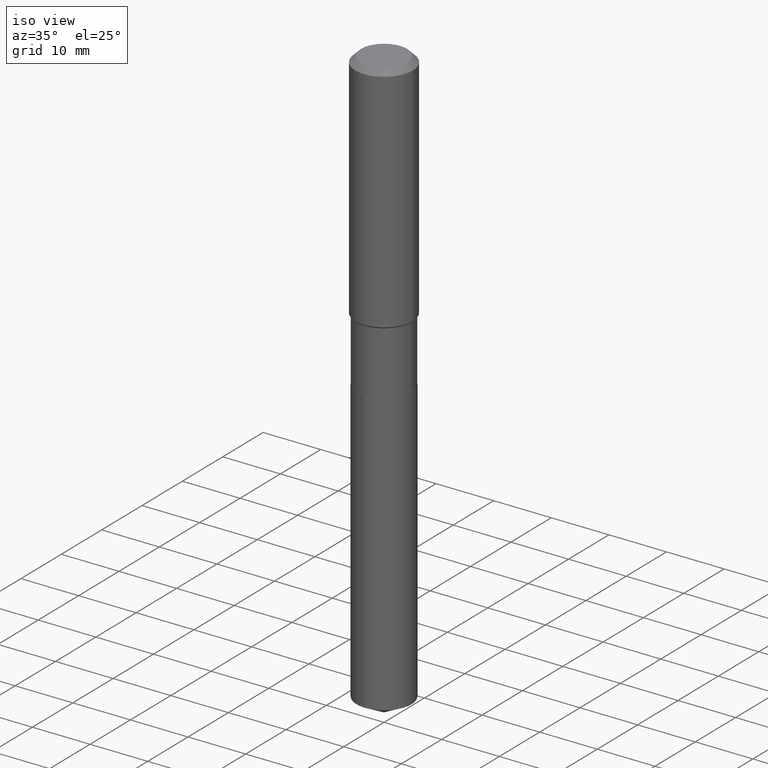
[diagram: clean part render]
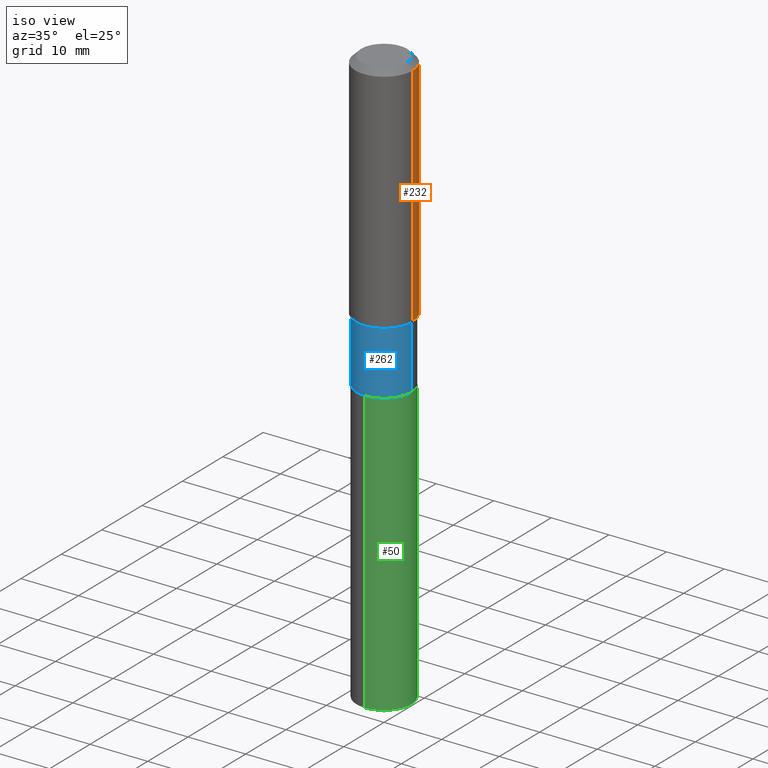
[diagram: same view with three faces highlighted in distinct colors, each labeled with its STEP entity id]
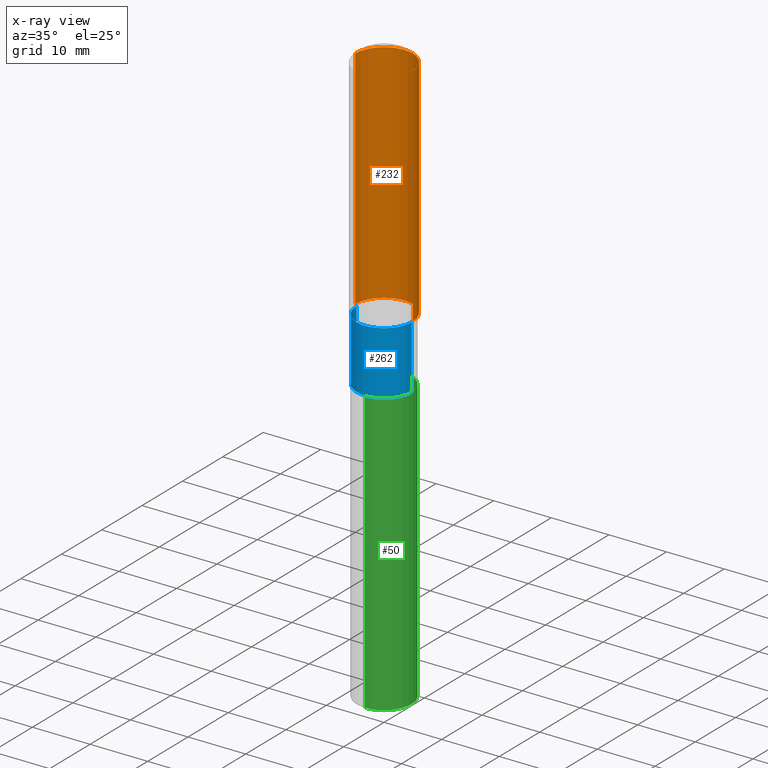
[diagram: x-ray of the same camera — body ghosted, the three highlighted faces saturated]
A machine part, iso view with three faces highlighted in distinct colors.
The next image is the same camera in x-ray (body ghosted, the three faces saturated) — at least one of them is partly hidden behind the body in this view.
Their STEP definitions:

[orange] entity #232 — the highlighted cylindrical surface (edge-blend (fillet) strip) has radius 5 mm, axis along (-0, 0, 1).
#23 = ORIENTED_EDGE ( 'NONE', *, *, #53, .F. ) ;
#27 = EDGE_CURVE ( 'NONE', #205, #251, #147, .T. ) ;
#28 = CARTESIAN_POINT ( 'NONE',  ( 0.000000000000000000, 0.000000000000000000, 0.000000000000000000 ) ) ;
#40 = EDGE_CURVE ( 'NONE', #441, #251, #233, .T. ) ;
#53 = EDGE_CURVE ( 'NONE', #407, #441, #286, .T. ) ;
#76 = CARTESIAN_POINT ( 'NONE',  ( 9.627810689950954155E-31, -1.374596203102556547E-16, -0.03937000000000029365 ) ) ;
#93 = DIRECTION ( 'NONE',  ( -2.445468806185136877E-29, 3.491481338843145188E-15, 1.000000000000000000 ) ) ;
#94 = AXIS2_PLACEMENT_3D ( 'NONE', #454, #107, #332 ) ;
#100 = DIRECTION ( 'NONE',  ( -2.445468806185136597E-29, 3.491481338843145583E-15, 1.000000000000000000 ) ) ;
#101 = AXIS2_PLACEMENT_3D ( 'NONE', #76, #297, #450 ) ;
#107 = DIRECTION ( 'NONE',  ( -2.445468806185136597E-29, 3.491481338843145583E-15, 1.000000000000000000 ) ) ;
#108 = CARTESIAN_POINT ( 'NONE',  ( -0.1968500000000001082, 1.398703375343757985E-15, -9.682923725166787881E-30 ) ) ;
#109 = CARTESIAN_POINT ( 'NONE',  ( 0.1968500000000000250, -1.512055823412797189E-15, -0.03937000000000029365 ) ) ;
#143 = ORIENTED_EDGE ( 'NONE', *, *, #27, .T. ) ;
#147 = LINE ( 'NONE', #108, #248 ) ;
#150 = DIRECTION ( 'NONE',  ( -2.445468806185136877E-29, 3.491481338843145188E-15, 1.000000000000000000 ) ) ;
#162 = CARTESIAN_POINT ( 'NONE',  ( 0.1968500000000001082, -1.374596203102542397E-15, 9.598753983154305062E-30 ) ) ;
#184 = AXIS2_PLACEMENT_3D ( 'NONE', #28, #100, #296 ) ;
#205 = VERTEX_POINT ( 'NONE', #398 ) ;
#222 = EDGE_CURVE ( 'NONE', #407, #205, #442, .T. ) ;
#232 = ADVANCED_FACE ( 'NONE', ( #372 ), #484, .T. ) ;
#233 = CIRCLE ( 'NONE', #101, 0.1968500000000000250 ) ;
#237 = VECTOR ( 'NONE', #93, 39.37007874015748143 ) ;
#248 = VECTOR ( 'NONE', #150, 39.37007874015748143 ) ;
#251 = VERTEX_POINT ( 'NONE', #259 ) ;
#259 = CARTESIAN_POINT ( 'NONE',  ( -0.1968500000000000250, -1.441127886417702753E-15, -0.03937000000000029365 ) ) ;
#273 = CARTESIAN_POINT ( 'NONE',  ( 0.1968500000000002192, -6.916799106315208686E-15, -1.587349999999999595 ) ) ;
#286 = LINE ( 'NONE', #162, #237 ) ;
#290 = ORIENTED_EDGE ( 'NONE', *, *, #222, .T. ) ;
#296 = DIRECTION ( 'NONE',  ( 1.000000000000000000, -6.982962677686266711E-15, 4.876176775795935793E-29 ) ) ;
#297 = DIRECTION ( 'NONE',  ( -2.445468806185136597E-29, 3.491481338843145583E-15, 1.000000000000000000 ) ) ;
#332 = DIRECTION ( 'NONE',  ( 1.000000000000000000, -6.982962677686265922E-15, 0.000000000000000000 ) ) ;
#372 = FACE_OUTER_BOUND ( 'NONE', #480, .T. ) ;
#379 = ORIENTED_EDGE ( 'NONE', *, *, #40, .F. ) ;
#398 = CARTESIAN_POINT ( 'NONE',  ( -0.1968500000000002192, -4.143499527868906923E-15, -1.587349999999999595 ) ) ;
#407 = VERTEX_POINT ( 'NONE', #273 ) ;
#441 = VERTEX_POINT ( 'NONE', #109 ) ;
#442 = CIRCLE ( 'NONE', #94, 0.1968500000000002192 ) ;
#450 = DIRECTION ( 'NONE',  ( 1.000000000000000000, -6.982962677686265922E-15, 0.000000000000000000 ) ) ;
#454 = CARTESIAN_POINT ( 'NONE',  ( 3.881814909497976059E-29, -5.542202903212666289E-15, -1.587349999999999595 ) ) ;
#480 = EDGE_LOOP ( 'NONE', ( #290, #143, #379, #23 ) ) ;
#484 = CYLINDRICAL_SURFACE ( 'NONE', #184, 0.1968500000000001082 ) ;

[blue] entity #262 — the highlighted cylindrical surface (edge-blend (fillet) strip) has radius 4.7625 mm, axis along (-0, 0, 1).
#21 = AXIS2_PLACEMENT_3D ( 'NONE', #164, #320, #472 ) ;
#30 = EDGE_CURVE ( 'NONE', #337, #446, #36, .T. ) ;
#36 = CIRCLE ( 'NONE', #425, 0.1875000000000000278 ) ;
#39 = DIRECTION ( 'NONE',  ( 1.000000000000000000, -6.982962677686266711E-15, 4.876176775795935793E-29 ) ) ;
#58 = VERTEX_POINT ( 'NONE', #369 ) ;
#95 = ORIENTED_EDGE ( 'NONE', *, *, #111, .F. ) ;
#111 = EDGE_CURVE ( 'NONE', #337, #58, #358, .T. ) ;
#125 = VECTOR ( 'NONE', #386, 39.37007874015748143 ) ;
#130 = DIRECTION ( 'NONE',  ( -2.445468806185136877E-29, 3.491481338843145188E-15, 1.000000000000000000 ) ) ;
#134 = CARTESIAN_POINT ( 'NONE',  ( 0.000000000000000000, 0.000000000000000000, 0.000000000000000000 ) ) ;
#151 = CARTESIAN_POINT ( 'NONE',  ( -0.1875000000000000278, -4.994645704567475454E-15, -2.027499999999999414 ) ) ;
#164 = CARTESIAN_POINT ( 'NONE',  ( 3.904680042835807186E-29, -5.574848253730850378E-15, -1.596700000000000008 ) ) ;
#171 = VERTEX_POINT ( 'NONE', #470 ) ;
#174 = FACE_OUTER_BOUND ( 'NONE', #448, .T. ) ;
#181 = EDGE_CURVE ( 'NONE', #58, #171, #464, .T. ) ;
#196 = CARTESIAN_POINT ( 'NONE',  ( 4.958188004540363822E-29, -7.078978414504476228E-15, -2.027499999999999414 ) ) ;
#208 = VECTOR ( 'NONE', #130, 39.37007874015748143 ) ;
#211 = CARTESIAN_POINT ( 'NONE',  ( -0.1874999999999999722, 1.332267629550187651E-15, -9.223003294227946589E-30 ) ) ;
#228 = CARTESIAN_POINT ( 'NONE',  ( 0.1875000000000000278, -8.388283916570652025E-15, -2.027499999999999414 ) ) ;
#260 = ORIENTED_EDGE ( 'NONE', *, *, #270, .T. ) ;
#261 = DIRECTION ( 'NONE',  ( -2.445468806185136597E-29, 3.491481338843145583E-15, 1.000000000000000000 ) ) ;
#262 = ADVANCED_FACE ( 'NONE', ( #174 ), #481, .T. ) ;
#263 = LINE ( 'NONE', #417, #125 ) ;
#270 = EDGE_CURVE ( 'NONE', #446, #171, #263, .T. ) ;
#293 = DIRECTION ( 'NONE',  ( -2.445468806185136597E-29, 3.491481338843145583E-15, 1.000000000000000000 ) ) ;
#320 = DIRECTION ( 'NONE',  ( -2.445468806185136597E-29, 3.491481338843145583E-15, 1.000000000000000000 ) ) ;
#334 = ORIENTED_EDGE ( 'NONE', *, *, #181, .F. ) ;
#337 = VERTEX_POINT ( 'NONE', #151 ) ;
#353 = DIRECTION ( 'NONE',  ( 1.000000000000000000, -6.982962677686266711E-15, 0.000000000000000000 ) ) ;
#358 = LINE ( 'NONE', #211, #208 ) ;
#369 = CARTESIAN_POINT ( 'NONE',  ( -0.1874999999999999445, -4.994645704567475454E-15, -1.596700000000000008 ) ) ;
#386 = DIRECTION ( 'NONE',  ( -2.445468806185136877E-29, 3.491481338843145188E-15, 1.000000000000000000 ) ) ;
#408 = ORIENTED_EDGE ( 'NONE', *, *, #30, .T. ) ;
#417 = CARTESIAN_POINT ( 'NONE',  ( 0.1874999999999999722, -1.309305502066174811E-15, 9.142831454617378210E-30 ) ) ;
#425 = AXIS2_PLACEMENT_3D ( 'NONE', #196, #261, #353 ) ;
#443 = AXIS2_PLACEMENT_3D ( 'NONE', #134, #293, #39 ) ;
#446 = VERTEX_POINT ( 'NONE', #228 ) ;
#448 = EDGE_LOOP ( 'NONE', ( #95, #408, #260, #334 ) ) ;
#464 = CIRCLE ( 'NONE', #21, 0.1874999999999999445 ) ;
#470 = CARTESIAN_POINT ( 'NONE',  ( 0.1874999999999999445, -6.884153755797024597E-15, -1.596700000000000008 ) ) ;
#472 = DIRECTION ( 'NONE',  ( 1.000000000000000000, -6.982962677686264344E-15, 0.000000000000000000 ) ) ;
#481 = CYLINDRICAL_SURFACE ( 'NONE', #443, 0.1874999999999999722 ) ;

[green] entity #50 — the highlighted cylindrical surface (edge-blend (fillet) strip) has radius 4.7625 mm, axis along (-0, 0, 1).
#4 = CARTESIAN_POINT ( 'NONE',  ( 4.959410738943456063E-29, -7.080724155173897732E-15, -2.027999999999999581 ) ) ;
#8 = CARTESIAN_POINT ( 'NONE',  ( -1.309305502066125507E-15, -0.1875000000000070777, -2.027999999999999137 ) ) ;
#16 = CARTESIAN_POINT ( 'NONE',  ( 1.332267629550284681E-15, 0.1874999999999929501, -2.028000000000000025 ) ) ;
#19 = DIRECTION ( 'NONE',  ( -6.982962677686265922E-15, -1.000000000000000000, 2.913971193241880372E-15 ) ) ;
#31 = ORIENTED_EDGE ( 'NONE', *, *, #74, .T. ) ;
#45 = VECTOR ( 'NONE', #154, 39.37007874015748143 ) ;
#46 = LINE ( 'NONE', #8, #45 ) ;
#50 = ADVANCED_FACE ( 'NONE', ( #364 ), #326, .T. ) ;
#59 = CARTESIAN_POINT ( 'NONE',  ( 4.959410738943456063E-29, -7.080724155173897732E-15, -2.027999999999999581 ) ) ;
#74 = EDGE_CURVE ( 'NONE', #242, #485, #199, .T. ) ;
#144 = CIRCLE ( 'NONE', #177, 0.1875000000000000278 ) ;
#154 = DIRECTION ( 'NONE',  ( -2.445393498022162713E-29, 3.491589184418798595E-15, 1.000000000000000000 ) ) ;
#177 = AXIS2_PLACEMENT_3D ( 'NONE', #391, #276, #469 ) ;
#186 = ORIENTED_EDGE ( 'NONE', *, *, #355, .F. ) ;
#188 = DIRECTION ( 'NONE',  ( -2.445393498022162713E-29, 3.491589184418798595E-15, 1.000000000000000000 ) ) ;
#199 = LINE ( 'NONE', #476, #335 ) ;
#221 = AXIS2_PLACEMENT_3D ( 'NONE', #59, #440, #19 ) ;
#223 = CIRCLE ( 'NONE', #306, 0.1875000000000000278 ) ;
#240 = DIRECTION ( 'NONE',  ( -2.445393498022162713E-29, 3.491589184418798595E-15, 1.000000000000000000 ) ) ;
#242 = VERTEX_POINT ( 'NONE', #449 ) ;
#247 = EDGE_LOOP ( 'NONE', ( #294, #31, #325, #186 ) ) ;
#276 = DIRECTION ( 'NONE',  ( -2.445393498022162713E-29, 3.491589184418798595E-15, 1.000000000000000000 ) ) ;
#282 = CARTESIAN_POINT ( 'NONE',  ( -1.309305502066077978E-15, -0.1875000000000137668, -3.955304481563473029 ) ) ;
#294 = ORIENTED_EDGE ( 'NONE', *, *, #479, .T. ) ;
#306 = AXIS2_PLACEMENT_3D ( 'NONE', #4, #188, #463 ) ;
#325 = ORIENTED_EDGE ( 'NONE', *, *, #344, .F. ) ;
#326 = CYLINDRICAL_SURFACE ( 'NONE', #221, 0.1875000000000000278 ) ;
#335 = VECTOR ( 'NONE', #240, 39.37007874015748143 ) ;
#344 = EDGE_CURVE ( 'NONE', #477, #485, #223, .T. ) ;
#355 = EDGE_CURVE ( 'NONE', #467, #477, #46, .T. ) ;
#364 = FACE_OUTER_BOUND ( 'NONE', #247, .T. ) ;
#391 = CARTESIAN_POINT ( 'NONE',  ( 9.672428586867749277E-29, -1.381007963808280120E-14, -3.955304481563473473 ) ) ;
#437 = CARTESIAN_POINT ( 'NONE',  ( -1.309305502066125507E-15, -0.1875000000000070777, -2.027999999999999137 ) ) ;
#440 = DIRECTION ( 'NONE',  ( -2.445393498022162713E-29, 3.491589184418798595E-15, 1.000000000000000000 ) ) ;
#449 = CARTESIAN_POINT ( 'NONE',  ( 1.332267629550284287E-15, 0.1874999999999861777, -3.955304481563474361 ) ) ;
#463 = DIRECTION ( 'NONE',  ( -6.982962677686265922E-15, -1.000000000000000000, 2.913971193241880372E-15 ) ) ;
#467 = VERTEX_POINT ( 'NONE', #282 ) ;
#469 = DIRECTION ( 'NONE',  ( -6.982962677686265922E-15, -1.000000000000000000, 2.913971193241880372E-15 ) ) ;
#476 = CARTESIAN_POINT ( 'NONE',  ( 1.332267629550237152E-15, 0.1874999999999929501, -2.028000000000000025 ) ) ;
#477 = VERTEX_POINT ( 'NONE', #437 ) ;
#479 = EDGE_CURVE ( 'NONE', #467, #242, #144, .T. ) ;
#485 = VERTEX_POINT ( 'NONE', #16 ) ;